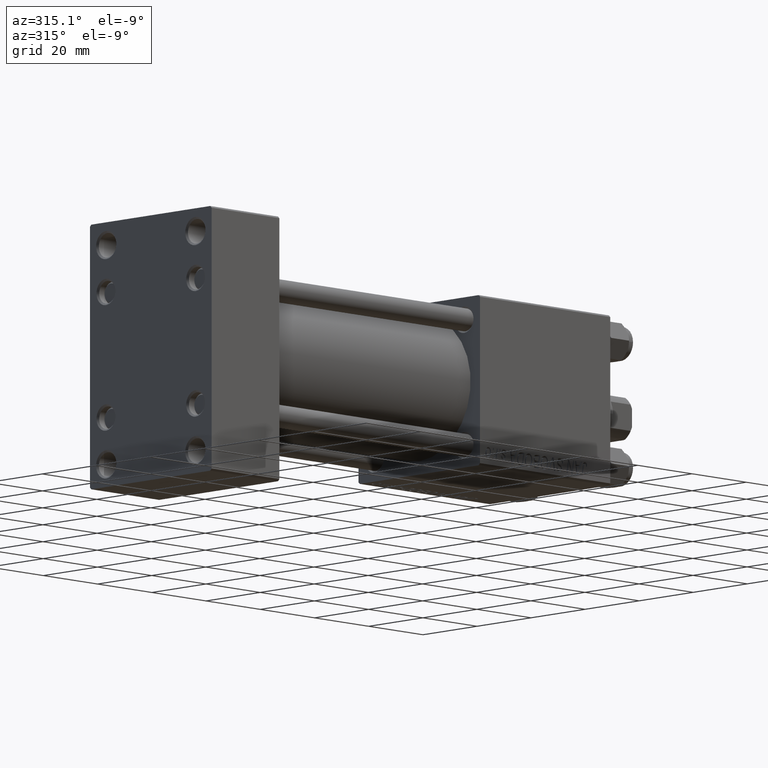
[diagram: clean part render]
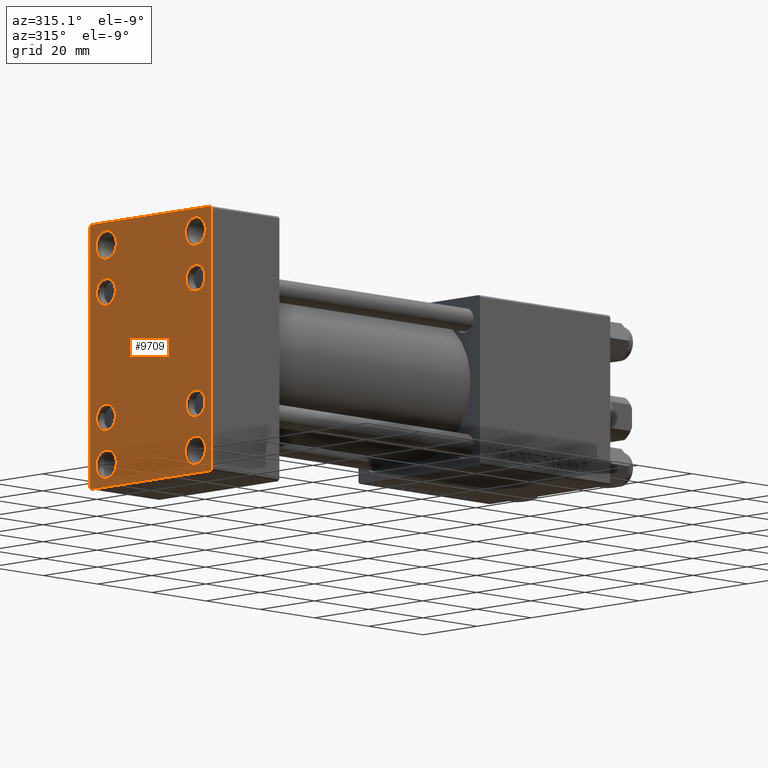
[diagram: same view with one face highlighted and labeled with its STEP entity id]
A machine part, auxiliary view. The second image highlights one B-rep face of the part: STEP entity #9709.
In plain terms, the highlighted planar face has unit normal (-1, 0, 0).
Its self-contained STEP definition (entity closure, byte-faithful):
#112 = FACE_BOUND ( 'NONE', #27825, .T. ) ;
#152 = CARTESIAN_POINT ( 'NONE',  ( 0.000000000000000000, -16.59999999999999076, 16.60000000000000853 ) ) ;
#231 = AXIS2_PLACEMENT_3D ( 'NONE', #29514, #1692, #13583 ) ;
#623 = DIRECTION ( 'NONE',  ( -1.000000000000000000, 0.000000000000000000, -0.000000000000000000 ) ) ;
#927 = AXIS2_PLACEMENT_3D ( 'NONE', #11552, #18901, #11056 ) ;
#934 = DIRECTION ( 'NONE',  ( 0.000000000000000000, 0.000000000000000000, 1.000000000000000000 ) ) ;
#1093 = EDGE_CURVE ( 'NONE', #4574, #24369, #34088, .T. ) ;
#1397 = EDGE_CURVE ( 'NONE', #8839, #16454, #10653, .T. ) ;
#1449 = CARTESIAN_POINT ( 'NONE',  ( 0.000000000000000000, -16.50000000000000711, 25.24999999999998934 ) ) ;
#1692 = DIRECTION ( 'NONE',  ( 1.000000000000000000, -0.000000000000000000, 0.000000000000000000 ) ) ;
#1840 = CIRCLE ( 'NONE', #30951, 3.750000000000000000 ) ;
#2122 = VERTEX_POINT ( 'NONE', #17374 ) ;
#2184 = EDGE_CURVE ( 'NONE', #22260, #15871, #9885, .T. ) ;
#2225 = CARTESIAN_POINT ( 'NONE',  ( 0.000000000000000000, 22.50000000000000355, 35.00000000000000711 ) ) ;
#2423 = ORIENTED_EDGE ( 'NONE', *, *, #10574, .T. ) ;
#2595 = CARTESIAN_POINT ( 'NONE',  ( 0.000000000000000000, -28.50000000000015632, -28.49999999999976197 ) ) ;
#3273 = CARTESIAN_POINT ( 'NONE',  ( 0.000000000000000000, -16.59999999999999076, 16.60000000000000853 ) ) ;
#3747 = EDGE_CURVE ( 'NONE', #2122, #34365, #1840, .T. ) ;
#3914 = PLANE ( 'NONE',  #40714 ) ;
#4459 = ORIENTED_EDGE ( 'NONE', *, *, #39202, .T. ) ;
#4573 = AXIS2_PLACEMENT_3D ( 'NONE', #26362, #6383, #41752 ) ;
#4574 = VERTEX_POINT ( 'NONE', #4762 ) ;
#4762 = CARTESIAN_POINT ( 'NONE',  ( 0.000000000000000000, 16.59999999999999787, 13.10000000000000675 ) ) ;
#5057 = CARTESIAN_POINT ( 'NONE',  ( 0.000000000000000000, -16.59999999999999076, -13.10000000000001030 ) ) ;
#5074 = CARTESIAN_POINT ( 'NONE',  ( 0.000000000000000000, 28.50000000000030909, 28.49999999999952038 ) ) ;
#5294 = EDGE_LOOP ( 'NONE', ( #4459, #24221 ) ) ;
#5348 = VERTEX_POINT ( 'NONE', #42632 ) ;
#6108 = LINE ( 'NONE', #13701, #12634 ) ;
#6383 = DIRECTION ( 'NONE',  ( 1.000000000000000000, -0.000000000000000000, 0.000000000000000000 ) ) ;
#6647 = AXIS2_PLACEMENT_3D ( 'NONE', #34346, #49723, #934 ) ;
#6957 = AXIS2_PLACEMENT_3D ( 'NONE', #32051, #47662, #13068 ) ;
#7599 = CIRCLE ( 'NONE', #37439, 3.750000000000003553 ) ;
#7692 = ORIENTED_EDGE ( 'NONE', *, *, #14343, .T. ) ;
#7725 = EDGE_CURVE ( 'NONE', #27109, #15459, #24809, .T. ) ;
#8501 = ORIENTED_EDGE ( 'NONE', *, *, #2184, .T. ) ;
#8534 = ORIENTED_EDGE ( 'NONE', *, *, #37524, .T. ) ;
#8839 = VERTEX_POINT ( 'NONE', #22825 ) ;
#8910 = EDGE_CURVE ( 'NONE', #27109, #28461, #19775, .T. ) ;
#9709 = ADVANCED_FACE ( 'NONE', ( #112, #19851, #39294, #19590, #34765, #38550, #31223, #19351, #46354 ), #3914, .T. ) ;
#9721 = ORIENTED_EDGE ( 'NONE', *, *, #38902, .T. ) ;
#9885 = CIRCLE ( 'NONE', #231, 3.499999999999996003 ) ;
#9974 = EDGE_LOOP ( 'NONE', ( #18442, #48908 ) ) ;
#10207 = ORIENTED_EDGE ( 'NONE', *, *, #23081, .T. ) ;
#10574 = EDGE_CURVE ( 'NONE', #31126, #39556, #47930, .T. ) ;
#10597 = ORIENTED_EDGE ( 'NONE', *, *, #28200, .T. ) ;
#10653 = CIRCLE ( 'NONE', #38917, 3.750000000000003553 ) ;
#10952 = DIRECTION ( 'NONE',  ( 0.000000000000000000, 0.000000000000000000, 1.000000000000000000 ) ) ;
#11056 = DIRECTION ( 'NONE',  ( 0.000000000000000000, 0.000000000000000000, 1.000000000000000000 ) ) ;
#11092 = CARTESIAN_POINT ( 'NONE',  ( 0.000000000000000000, 16.49999999999999289, 32.74999999999999289 ) ) ;
#11552 = CARTESIAN_POINT ( 'NONE',  ( 0.000000000000000000, -16.59999999999999076, -16.60000000000000853 ) ) ;
#11715 = VECTOR ( 'NONE', #16712, 1000.000000000000000 ) ;
#12488 = CARTESIAN_POINT ( 'NONE',  ( 0.000000000000000000, 16.49999999999999289, 28.99999999999998934 ) ) ;
#12634 = VECTOR ( 'NONE', #44015, 1000.000000000000000 ) ;
#12898 = EDGE_CURVE ( 'NONE', #42043, #42412, #15829, .T. ) ;
#13068 = DIRECTION ( 'NONE',  ( 0.000000000000000000, 0.000000000000000000, 1.000000000000000000 ) ) ;
#13583 = DIRECTION ( 'NONE',  ( 0.000000000000000000, 0.000000000000000000, 1.000000000000000000 ) ) ;
#13701 = CARTESIAN_POINT ( 'NONE',  ( 0.000000000000000000, 22.50000000000000355, -34.99999999999999289 ) ) ;
#13819 = ORIENTED_EDGE ( 'NONE', *, *, #23129, .T. ) ;
#13834 = DIRECTION ( 'NONE',  ( 0.000000000000000000, 0.000000000000000000, 1.000000000000000000 ) ) ;
#14277 = ORIENTED_EDGE ( 'NONE', *, *, #27959, .F. ) ;
#14342 = ORIENTED_EDGE ( 'NONE', *, *, #12898, .T. ) ;
#14343 = EDGE_CURVE ( 'NONE', #29825, #5348, #29169, .T. ) ;
#14396 = EDGE_LOOP ( 'NONE', ( #13819, #20930 ) ) ;
#15459 = VERTEX_POINT ( 'NONE', #25893 ) ;
#15625 = CIRCLE ( 'NONE', #30172, 3.499999999999996003 ) ;
#15801 = DIRECTION ( 'NONE',  ( -0.000000000000000000, 0.000000000000000000, 1.000000000000000000 ) ) ;
#15829 = CIRCLE ( 'NONE', #35180, 3.750000000000003553 ) ;
#15871 = VERTEX_POINT ( 'NONE', #33665 ) ;
#16118 = CARTESIAN_POINT ( 'NONE',  ( 0.000000000000000000, -16.59999999999999076, 13.10000000000001030 ) ) ;
#16278 = EDGE_CURVE ( 'NONE', #44455, #30686, #26280, .T. ) ;
#16454 = VERTEX_POINT ( 'NONE', #1449 ) ;
#16507 = AXIS2_PLACEMENT_3D ( 'NONE', #36484, #43800, #40781 ) ;
#16712 = DIRECTION ( 'NONE',  ( 0.000000000000000000, -1.000000000000000000, -1.541976423090495387E-16 ) ) ;
#17374 = CARTESIAN_POINT ( 'NONE',  ( 0.000000000000000000, -16.50000000000000711, -32.75000000000000711 ) ) ;
#17379 = DIRECTION ( 'NONE',  ( 1.000000000000000000, -0.000000000000000000, 0.000000000000000000 ) ) ;
#17690 = CARTESIAN_POINT ( 'NONE',  ( 0.000000000000000000, 16.59999999999999787, -13.10000000000000675 ) ) ;
#17824 = DIRECTION ( 'NONE',  ( 0.000000000000000000, 0.000000000000000000, 1.000000000000000000 ) ) ;
#17932 = ORIENTED_EDGE ( 'NONE', *, *, #1397, .T. ) ;
#18442 = ORIENTED_EDGE ( 'NONE', *, *, #38225, .T. ) ;
#18901 = DIRECTION ( 'NONE',  ( 1.000000000000000000, -0.000000000000000000, 0.000000000000000000 ) ) ;
#19059 = VECTOR ( 'NONE', #25271, 1000.000000000000000 ) ;
#19125 = CIRCLE ( 'NONE', #4573, 3.499999999999996003 ) ;
#19351 = FACE_BOUND ( 'NONE', #9974, .T. ) ;
#19590 = FACE_BOUND ( 'NONE', #49337, .T. ) ;
#19775 = LINE ( 'NONE', #5074, #39876 ) ;
#19851 = FACE_BOUND ( 'NONE', #46014, .T. ) ;
#20549 = VERTEX_POINT ( 'NONE', #16118 ) ;
#20930 = ORIENTED_EDGE ( 'NONE', *, *, #41278, .T. ) ;
#20964 = LINE ( 'NONE', #2225, #26761 ) ;
#21425 = DIRECTION ( 'NONE',  ( 1.000000000000000000, -0.000000000000000000, 0.000000000000000000 ) ) ;
#21488 = CARTESIAN_POINT ( 'NONE',  ( -0.000000000000000000, -28.50000000000015632, 28.49999999999976197 ) ) ;
#21502 = ORIENTED_EDGE ( 'NONE', *, *, #34010, .T. ) ;
#21525 = CARTESIAN_POINT ( 'NONE',  ( 0.000000000000000000, 21.99999999999999645, -34.99999999999999289 ) ) ;
#21555 = AXIS2_PLACEMENT_3D ( 'NONE', #30008, #49425, #48936 ) ;
#22260 = VERTEX_POINT ( 'NONE', #17690 ) ;
#22394 = VERTEX_POINT ( 'NONE', #46657 ) ;
#22714 = CARTESIAN_POINT ( 'NONE',  ( 0.000000000000000000, -16.59999999999999076, -20.10000000000000497 ) ) ;
#22825 = CARTESIAN_POINT ( 'NONE',  ( 0.000000000000000000, -16.50000000000000711, 32.74999999999999289 ) ) ;
#23081 = EDGE_CURVE ( 'NONE', #28461, #44455, #20964, .T. ) ;
#23124 = ORIENTED_EDGE ( 'NONE', *, *, #28652, .T. ) ;
#23129 = EDGE_CURVE ( 'NONE', #40755, #23817, #44497, .T. ) ;
#23445 = DIRECTION ( 'NONE',  ( 0.000000000000000000, 0.000000000000000000, 1.000000000000000000 ) ) ;
#23817 = VERTEX_POINT ( 'NONE', #22714 ) ;
#23945 = CIRCLE ( 'NONE', #27194, 3.750000000000000000 ) ;
#24221 = ORIENTED_EDGE ( 'NONE', *, *, #3747, .T. ) ;
#24369 = VERTEX_POINT ( 'NONE', #32965 ) ;
#24494 = CARTESIAN_POINT ( 'NONE',  ( 0.000000000000000000, 16.49999999999999289, -25.25000000000000711 ) ) ;
#24655 = CIRCLE ( 'NONE', #48023, 3.750000000000003553 ) ;
#24809 = LINE ( 'NONE', #25308, #11715 ) ;
#25271 = DIRECTION ( 'NONE',  ( -0.000000000000000000, 0.7071067811865426878, 0.7071067811865524577 ) ) ;
#25308 = CARTESIAN_POINT ( 'NONE',  ( 0.000000000000000000, 22.50000000000000355, 35.00000000000000711 ) ) ;
#25373 = CARTESIAN_POINT ( 'NONE',  ( 0.000000000000000000, -22.49999999999999645, 34.50000000000000000 ) ) ;
#25469 = CARTESIAN_POINT ( 'NONE',  ( 0.000000000000000000, 16.59999999999999787, 16.60000000000000497 ) ) ;
#25893 = CARTESIAN_POINT ( 'NONE',  ( 0.000000000000000000, -21.99999999999998934, 35.00000000000000000 ) ) ;
#25907 = ORIENTED_EDGE ( 'NONE', *, *, #16278, .T. ) ;
#25969 = CARTESIAN_POINT ( 'NONE',  ( 0.000000000000000000, -16.50000000000000711, -29.00000000000000711 ) ) ;
#26280 = LINE ( 'NONE', #34845, #35322 ) ;
#26362 = CARTESIAN_POINT ( 'NONE',  ( 0.000000000000000000, 16.59999999999999787, -16.60000000000000497 ) ) ;
#26490 = LINE ( 'NONE', #26732, #33389 ) ;
#26732 = CARTESIAN_POINT ( 'NONE',  ( 0.000000000000000000, -22.49999999999999645, 35.00000000000000000 ) ) ;
#26761 = VECTOR ( 'NONE', #44176, 1000.000000000000000 ) ;
#27109 = VERTEX_POINT ( 'NONE', #37265 ) ;
#27194 = AXIS2_PLACEMENT_3D ( 'NONE', #39064, #36023, #31242 ) ;
#27825 = EDGE_LOOP ( 'NONE', ( #14342, #21502 ) ) ;
#27937 = CARTESIAN_POINT ( 'NONE',  ( 0.000000000000000000, 0.000000000000000000, 0.000000000000000000 ) ) ;
#27959 = EDGE_CURVE ( 'NONE', #30173, #5348, #26490, .T. ) ;
#28200 = EDGE_CURVE ( 'NONE', #20549, #22394, #43032, .T. ) ;
#28461 = VERTEX_POINT ( 'NONE', #28705 ) ;
#28525 = ORIENTED_EDGE ( 'NONE', *, *, #7725, .F. ) ;
#28652 = EDGE_CURVE ( 'NONE', #22394, #20549, #15625, .T. ) ;
#28705 = CARTESIAN_POINT ( 'NONE',  ( 0.000000000000000000, 22.50000000000000355, 34.49999999999999289 ) ) ;
#29008 = ORIENTED_EDGE ( 'NONE', *, *, #44232, .T. ) ;
#29169 = LINE ( 'NONE', #2595, #32784 ) ;
#29242 = CARTESIAN_POINT ( 'NONE',  ( 0.000000000000000000, -16.50000000000000711, 28.99999999999998934 ) ) ;
#29311 = LINE ( 'NONE', #21488, #19059 ) ;
#29514 = CARTESIAN_POINT ( 'NONE',  ( 0.000000000000000000, 16.59999999999999787, -16.60000000000000497 ) ) ;
#29825 = VERTEX_POINT ( 'NONE', #45349 ) ;
#29985 = DIRECTION ( 'NONE',  ( 1.000000000000000000, -0.000000000000000000, 0.000000000000000000 ) ) ;
#30008 = CARTESIAN_POINT ( 'NONE',  ( 0.000000000000000000, -16.59999999999999076, -16.60000000000000853 ) ) ;
#30172 = AXIS2_PLACEMENT_3D ( 'NONE', #3273, #33879, #37904 ) ;
#30173 = VERTEX_POINT ( 'NONE', #25373 ) ;
#30260 = DIRECTION ( 'NONE',  ( 1.000000000000000000, -0.000000000000000000, 0.000000000000000000 ) ) ;
#30686 = VERTEX_POINT ( 'NONE', #21525 ) ;
#30951 = AXIS2_PLACEMENT_3D ( 'NONE', #25969, #17379, #13834 ) ;
#31126 = VERTEX_POINT ( 'NONE', #24494 ) ;
#31181 = DIRECTION ( 'NONE',  ( 1.000000000000000000, -0.000000000000000000, 0.000000000000000000 ) ) ;
#31223 = FACE_BOUND ( 'NONE', #43060, .T. ) ;
#31242 = DIRECTION ( 'NONE',  ( 0.000000000000000000, 0.000000000000000000, 1.000000000000000000 ) ) ;
#31403 = DIRECTION ( 'NONE',  ( 0.000000000000000000, 0.7071067811865376918, -0.7071067811865574537 ) ) ;
#31740 = ORIENTED_EDGE ( 'NONE', *, *, #8910, .T. ) ;
#32051 = CARTESIAN_POINT ( 'NONE',  ( 0.000000000000000000, -16.50000000000000711, -29.00000000000000711 ) ) ;
#32784 = VECTOR ( 'NONE', #49096, 1000.000000000000000 ) ;
#32965 = CARTESIAN_POINT ( 'NONE',  ( 0.000000000000000000, 16.59999999999999787, 20.10000000000000142 ) ) ;
#33389 = VECTOR ( 'NONE', #38336, 1000.000000000000000 ) ;
#33476 = CARTESIAN_POINT ( 'NONE',  ( 0.000000000000000000, 16.49999999999999289, -32.75000000000000711 ) ) ;
#33665 = CARTESIAN_POINT ( 'NONE',  ( 0.000000000000000000, 16.59999999999999787, -20.10000000000000142 ) ) ;
#33802 = ORIENTED_EDGE ( 'NONE', *, *, #39761, .T. ) ;
#33879 = DIRECTION ( 'NONE',  ( 1.000000000000000000, -0.000000000000000000, 0.000000000000000000 ) ) ;
#34010 = EDGE_CURVE ( 'NONE', #42412, #42043, #7599, .T. ) ;
#34088 = CIRCLE ( 'NONE', #6647, 3.499999999999996003 ) ;
#34346 = CARTESIAN_POINT ( 'NONE',  ( 0.000000000000000000, 16.59999999999999787, 16.60000000000000497 ) ) ;
#34365 = VERTEX_POINT ( 'NONE', #48555 ) ;
#34765 = FACE_BOUND ( 'NONE', #40998, .T. ) ;
#34845 = CARTESIAN_POINT ( 'NONE',  ( 0.000000000000000000, 28.49999999999984013, -28.50000000000024158 ) ) ;
#34966 = CARTESIAN_POINT ( 'NONE',  ( 0.000000000000000000, -16.50000000000000711, 28.99999999999998934 ) ) ;
#35180 = AXIS2_PLACEMENT_3D ( 'NONE', #12488, #43053, #36464 ) ;
#35197 = AXIS2_PLACEMENT_3D ( 'NONE', #25469, #21425, #48918 ) ;
#35322 = VECTOR ( 'NONE', #41917, 999.9999999999998863 ) ;
#36023 = DIRECTION ( 'NONE',  ( 1.000000000000000000, -0.000000000000000000, 0.000000000000000000 ) ) ;
#36278 = DIRECTION ( 'NONE',  ( 1.000000000000000000, -0.000000000000000000, 0.000000000000000000 ) ) ;
#36464 = DIRECTION ( 'NONE',  ( 0.000000000000000000, 0.000000000000000000, 1.000000000000000000 ) ) ;
#36484 = CARTESIAN_POINT ( 'NONE',  ( 0.000000000000000000, 16.49999999999999289, -29.00000000000000711 ) ) ;
#37065 = DIRECTION ( 'NONE',  ( 0.000000000000000000, 0.000000000000000000, 1.000000000000000000 ) ) ;
#37265 = CARTESIAN_POINT ( 'NONE',  ( 0.000000000000000000, 22.00000000000000355, 35.00000000000000711 ) ) ;
#37439 = AXIS2_PLACEMENT_3D ( 'NONE', #47380, #36278, #17824 ) ;
#37524 = EDGE_CURVE ( 'NONE', #16454, #8839, #24655, .T. ) ;
#37904 = DIRECTION ( 'NONE',  ( 0.000000000000000000, 0.000000000000000000, 1.000000000000000000 ) ) ;
#38225 = EDGE_CURVE ( 'NONE', #24369, #4574, #42457, .T. ) ;
#38336 = DIRECTION ( 'NONE',  ( 0.000000000000000000, 0.000000000000000000, -1.000000000000000000 ) ) ;
#38550 = FACE_BOUND ( 'NONE', #14396, .T. ) ;
#38902 = EDGE_CURVE ( 'NONE', #30173, #15459, #29311, .T. ) ;
#38917 = AXIS2_PLACEMENT_3D ( 'NONE', #34966, #31181, #10952 ) ;
#39064 = CARTESIAN_POINT ( 'NONE',  ( 0.000000000000000000, 16.49999999999999289, -29.00000000000000711 ) ) ;
#39202 = EDGE_CURVE ( 'NONE', #34365, #2122, #48928, .T. ) ;
#39294 = FACE_BOUND ( 'NONE', #5294, .T. ) ;
#39419 = EDGE_CURVE ( 'NONE', #39556, #31126, #23945, .T. ) ;
#39556 = VERTEX_POINT ( 'NONE', #33476 ) ;
#39761 = EDGE_CURVE ( 'NONE', #30686, #29825, #6108, .T. ) ;
#39876 = VECTOR ( 'NONE', #31403, 999.9999999999998863 ) ;
#40714 = AXIS2_PLACEMENT_3D ( 'NONE', #27937, #623, #15801 ) ;
#40755 = VERTEX_POINT ( 'NONE', #5057 ) ;
#40781 = DIRECTION ( 'NONE',  ( 0.000000000000000000, 0.000000000000000000, 1.000000000000000000 ) ) ;
#40933 = EDGE_LOOP ( 'NONE', ( #10207, #25907, #33802, #7692, #14277, #9721, #28525, #31740 ) ) ;
#40998 = EDGE_LOOP ( 'NONE', ( #23124, #10597 ) ) ;
#41278 = EDGE_CURVE ( 'NONE', #23817, #40755, #43313, .T. ) ;
#41752 = DIRECTION ( 'NONE',  ( 0.000000000000000000, 0.000000000000000000, 1.000000000000000000 ) ) ;
#41917 = DIRECTION ( 'NONE',  ( -0.000000000000000000, -0.7071067811865525687, -0.7071067811865425767 ) ) ;
#42043 = VERTEX_POINT ( 'NONE', #11092 ) ;
#42412 = VERTEX_POINT ( 'NONE', #43048 ) ;
#42457 = CIRCLE ( 'NONE', #35197, 3.499999999999996003 ) ;
#42632 = CARTESIAN_POINT ( 'NONE',  ( 0.000000000000000000, -22.49999999999999645, -34.50000000000000000 ) ) ;
#43032 = CIRCLE ( 'NONE', #49466, 3.499999999999996003 ) ;
#43048 = CARTESIAN_POINT ( 'NONE',  ( 0.000000000000000000, 16.49999999999999289, 25.24999999999998934 ) ) ;
#43053 = DIRECTION ( 'NONE',  ( 1.000000000000000000, -0.000000000000000000, 0.000000000000000000 ) ) ;
#43060 = EDGE_LOOP ( 'NONE', ( #8501, #29008 ) ) ;
#43313 = CIRCLE ( 'NONE', #21555, 3.499999999999996003 ) ;
#43800 = DIRECTION ( 'NONE',  ( 1.000000000000000000, -0.000000000000000000, 0.000000000000000000 ) ) ;
#44015 = DIRECTION ( 'NONE',  ( 0.000000000000000000, -1.000000000000000000, -1.541976423090495387E-16 ) ) ;
#44176 = DIRECTION ( 'NONE',  ( 0.000000000000000000, 0.000000000000000000, -1.000000000000000000 ) ) ;
#44232 = EDGE_CURVE ( 'NONE', #15871, #22260, #19125, .T. ) ;
#44455 = VERTEX_POINT ( 'NONE', #45465 ) ;
#44497 = CIRCLE ( 'NONE', #927, 3.499999999999996003 ) ;
#45349 = CARTESIAN_POINT ( 'NONE',  ( 0.000000000000000000, -21.99999999999998934, -35.00000000000000000 ) ) ;
#45465 = CARTESIAN_POINT ( 'NONE',  ( 0.000000000000000000, 22.50000000000000355, -34.49999999999999289 ) ) ;
#46014 = EDGE_LOOP ( 'NONE', ( #17932, #8534 ) ) ;
#46354 = FACE_OUTER_BOUND ( 'NONE', #40933, .T. ) ;
#46657 = CARTESIAN_POINT ( 'NONE',  ( 0.000000000000000000, -16.59999999999999076, 20.10000000000000853 ) ) ;
#47168 = ORIENTED_EDGE ( 'NONE', *, *, #39419, .T. ) ;
#47380 = CARTESIAN_POINT ( 'NONE',  ( 0.000000000000000000, 16.49999999999999289, 28.99999999999998934 ) ) ;
#47662 = DIRECTION ( 'NONE',  ( 1.000000000000000000, -0.000000000000000000, 0.000000000000000000 ) ) ;
#47930 = CIRCLE ( 'NONE', #16507, 3.750000000000000000 ) ;
#48023 = AXIS2_PLACEMENT_3D ( 'NONE', #29242, #29985, #37065 ) ;
#48555 = CARTESIAN_POINT ( 'NONE',  ( 0.000000000000000000, -16.50000000000000711, -25.25000000000000711 ) ) ;
#48908 = ORIENTED_EDGE ( 'NONE', *, *, #1093, .T. ) ;
#48918 = DIRECTION ( 'NONE',  ( 0.000000000000000000, 0.000000000000000000, 1.000000000000000000 ) ) ;
#48928 = CIRCLE ( 'NONE', #6957, 3.750000000000000000 ) ;
#48936 = DIRECTION ( 'NONE',  ( 0.000000000000000000, 0.000000000000000000, 1.000000000000000000 ) ) ;
#49096 = DIRECTION ( 'NONE',  ( 0.000000000000000000, -0.7071067811865426878, 0.7071067811865524577 ) ) ;
#49337 = EDGE_LOOP ( 'NONE', ( #2423, #47168 ) ) ;
#49425 = DIRECTION ( 'NONE',  ( 1.000000000000000000, -0.000000000000000000, 0.000000000000000000 ) ) ;
#49466 = AXIS2_PLACEMENT_3D ( 'NONE', #152, #30260, #23445 ) ;
#49723 = DIRECTION ( 'NONE',  ( 1.000000000000000000, -0.000000000000000000, 0.000000000000000000 ) ) ;